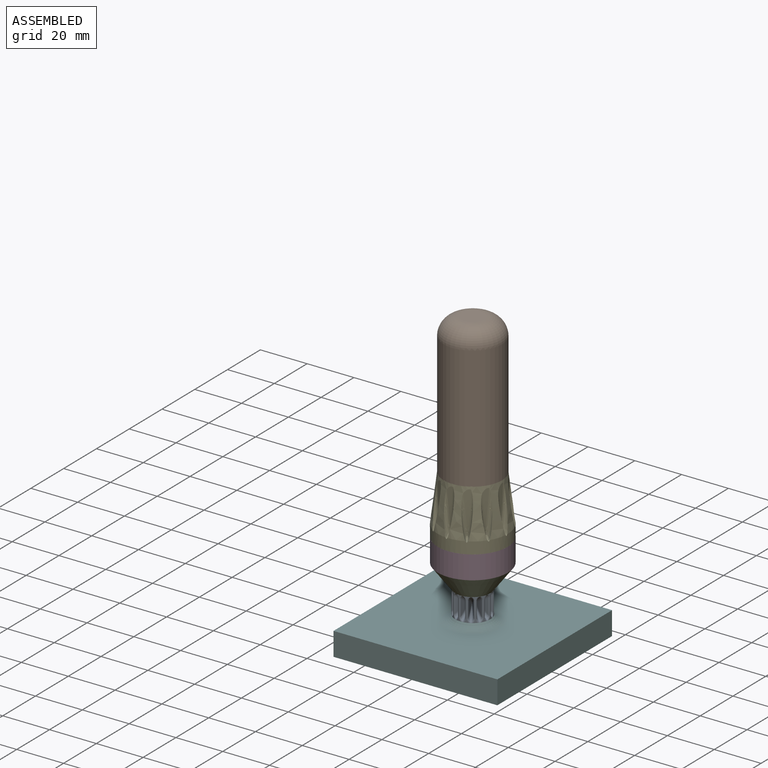
[diagram: assembled view]
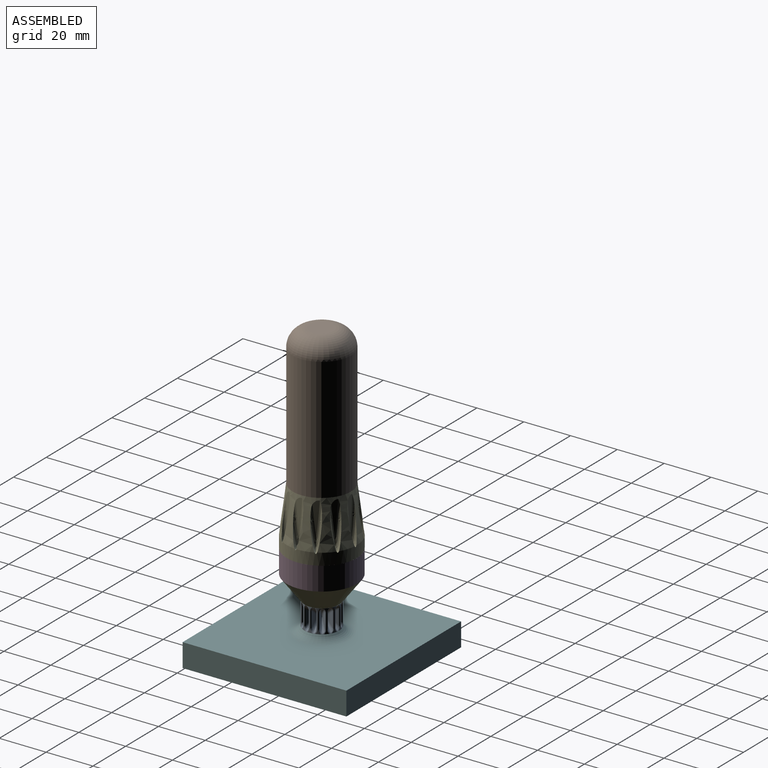
[diagram: assembled view, second angle]
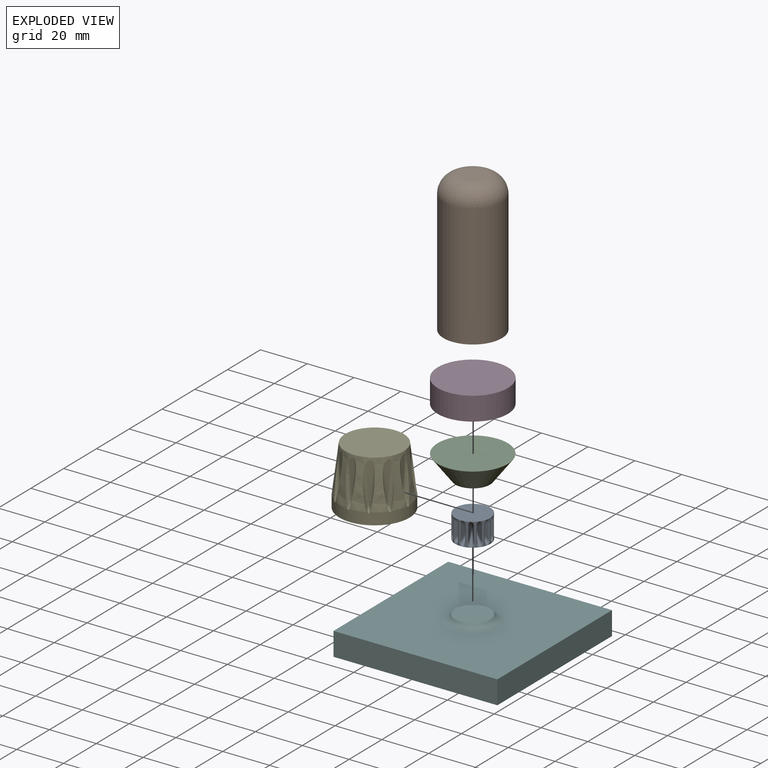
[diagram: exploded view]
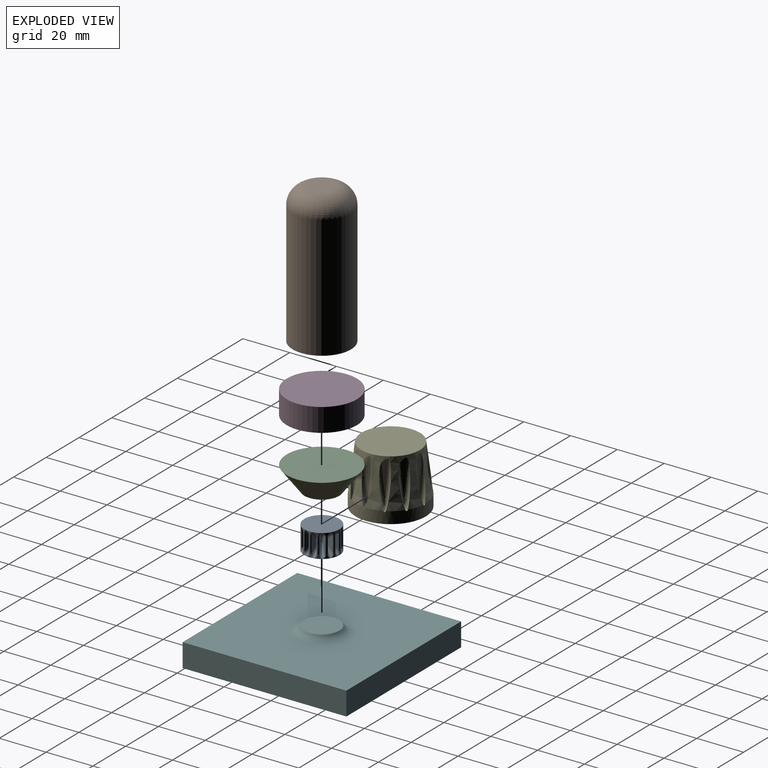
[diagram: exploded view, second angle]
ASSEMBLY  parts=6 mates=4
PART A: 167 faces, bbox 16.3x16.4x10.5 mm
  f0: cylinder r=7.5mm len=10mm, axis (0,0,-1), area 5mm2, adj f15,f16,f79,f81,f82,f95,f96,f98
  f1: cylinder r=7.5mm len=10mm, axis (0,0,-1), area 5mm2, adj f15,f16,f77,f78,f80,f85,f87,f88
  f2: cylinder r=7.5mm len=10mm, axis (0,0,-1), area 5mm2, adj f15,f16,f91,f93,f94,f143,f144,f146
  f3: cylinder r=7.5mm len=10mm, axis (0,0,-1), area 5mm2, adj f15,f16,f89,f90,f92,f97,f99,f100
  f4: cylinder r=7.5mm len=10mm, axis (0,0,-1), area 5mm2, adj f15,f16,f103,f105,f106,f119,f120,f122
  f5: cylinder r=7.5mm len=10mm, axis (0,0,-1), area 5mm2, adj f15,f16,f101,f102,f104,f109,f111,f112
  f6: cylinder r=7.5mm len=10mm, axis (0,0,-1), area 5mm2, adj f15,f16,f83,f84,f86,f115,f117,f118
  f7: cylinder r=7.5mm len=10mm, axis (0,0,-1), area 5mm2, adj f15,f16,f113,f114,f116,f121,f123,f124
  f8: cylinder r=7.5mm len=10mm, axis (0,0,-1), area 5mm2, adj f15,f16,f127,f129,f130,f131,f132,f134
  f9: cylinder r=7.5mm len=10mm, axis (0,0,-1), area 5mm2, adj f15,f16,f133,f135,f136,f161,f162,f164
  f10: cylinder r=7.5mm len=10mm, axis (0,0,-1), area 5mm2, adj f15,f16,f139,f141,f142,f155,f156,f158
  f11: cylinder r=7.5mm len=10mm, axis (0,0,-1), area 5mm2, adj f15,f16,f137,f138,f140,f145,f147,f148
  f12: cylinder r=7.5mm len=10mm, axis (0,0,-1), area 5mm2, adj f15,f16,f125,f126,f128,f151,f153,f154
  f13: cylinder r=7.5mm len=10mm, axis (0,0,-1), area 5mm2, adj f15,f16,f149,f150,f152,f157,f159,f160
  f14: cylinder r=7.5mm len=10mm, axis (0,0,-1), area 5mm2, adj f15,f16,f107,f108,f110,f163,f165,f166
  f15: plane 15.06x15.04mm, normal (0,0,1), area 176.5mm2, adj f0,f1,f2,f3,f4,f5,f6,f7
  f16: plane 15.06x15.04mm, normal (0,0,-1), area 176.5mm2, adj f0,f1,f2,f3,f4,f5,f6,f7
  f17: plane 6.39x2.87mm, normal (0.88,-0.47,0), area 12.4mm2, adj f19,f165
  f18: plane 6.39x3.21mm, normal (-0.99,0.14,0), area 12.4mm2, adj f20,f162
  f19: bspline ~10.02x4.81mm, area 18.8mm2, adj f17,f20,f163,f166
  f20: bspline ~10.02x5.72mm, area 18.8mm2, adj f18,f19,f161,f164
  f21: plane 6.39x3.01mm, normal (0.37,0.93,0), area 12.4mm2, adj f23,f159
  f22: plane 6.39x3.24mm, normal (-0.03,-1,0), area 12.4mm2, adj f24,f156
  f23: bspline ~10.02x5.05mm, area 18.8mm2, adj f21,f24,f157,f160
  f24: bspline ~10.02x5.66mm, area 18.8mm2, adj f22,f23,f155,f158
  f25: plane 6.39x2.34mm, normal (0.72,0.69,0), area 12.4mm2, adj f27,f153
  f26: plane 6.39x2.92mm, normal (-0.44,-0.9,0), area 12.4mm2, adj f28,f150
  f27: bspline ~10.02x4.77mm, area 18.8mm2, adj f25,f28,f151,f154
  f28: bspline ~10.02x5.51mm, area 18.8mm2, adj f26,f27,f149,f152
  f29: plane 6.39x2.92mm, normal (-0.44,0.9,0), area 12.4mm2, adj f31,f147
  f30: plane 6.39x2.34mm, normal (0.72,-0.69,0), area 12.4mm2, adj f32,f144
  f31: bspline ~10.02x5.51mm, area 18.8mm2, adj f29,f32,f145,f148
  f32: bspline ~10.02x4.77mm, area 18.8mm2, adj f30,f31,f143,f146
  f33: plane 6.39x3.24mm, normal (-0.03,1,0), area 12.4mm2, adj f35,f141
  f34: plane 6.39x3.01mm, normal (0.37,-0.93,0), area 12.4mm2, adj f36,f138
  f35: bspline ~10.02x5.66mm, area 18.8mm2, adj f33,f36,f139,f142
  f36: bspline ~10.02x5.05mm, area 18.8mm2, adj f34,f35,f137,f140
  f37: plane 6.39x3.24mm, normal (1,-0.07,0), area 12.4mm2, adj f39,f135
  f38: plane 6.39x3.12mm, normal (-0.96,-0.28,0), area 12.4mm2, adj f40,f132
  f39: bspline ~10.02x5.54mm, area 18.8mm2, adj f37,f40,f133,f136
  f40: bspline ~10.02x5.23mm, area 18.8mm2, adj f38,f39,f131,f134
  f41: plane 6.39x3.05mm, normal (0.94,0.34,0), area 12.4mm2, adj f43,f129
  f42: plane 6.39x2.49mm, normal (-0.77,-0.64,0), area 12.4mm2, adj f44,f126
  f43: bspline ~10.02x5.64mm, area 18.8mm2, adj f41,f44,f127,f130
  f44: bspline ~10.02x4.41mm, area 18.8mm2, adj f42,f43,f125,f128
  f45: plane 6.39x3.2mm, normal (-0.17,-0.98,0), area 12.4mm2, adj f47,f123
  f46: plane 6.39x3.2mm, normal (-0.17,0.98,0), area 12.4mm2, adj f48,f120
  f47: bspline ~10.02x5.36mm, area 18.8mm2, adj f45,f48,f121,f124
  f48: bspline ~10.02x5.36mm, area 18.8mm2, adj f46,f47,f119,f122
  f49: plane 6.39x2.69mm, normal (-0.56,-0.83,0), area 12.4mm2, adj f51,f117
  f50: plane 6.39x3.15mm, normal (0.24,0.97,0), area 12.4mm2, adj f52,f114
  f51: bspline ~10.02x4.58mm, area 18.8mm2, adj f49,f52,f115,f118
  f52: bspline ~10.02x5.71mm, area 18.8mm2, adj f50,f51,f113,f116
  f53: plane 6.39x2.56mm, normal (0.62,-0.79,0), area 12.4mm2, adj f55,f111
  f54: plane 6.39x2.75mm, normal (-0.85,0.53,0), area 12.4mm2, adj f56,f108
  f55: bspline ~10.02x5.07mm, area 18.8mm2, adj f53,f56,f109,f112
  f56: bspline ~10.02x5.32mm, area 18.8mm2, adj f54,f55,f107,f110
  f57: plane 6.39x3.15mm, normal (0.24,-0.97,0), area 12.4mm2, adj f59,f105
  f58: plane 6.39x2.69mm, normal (-0.56,0.83,0), area 12.4mm2, adj f60,f102
  f59: bspline ~10.02x5.71mm, area 18.8mm2, adj f57,f60,f103,f106
  f60: bspline ~10.02x4.58mm, area 18.8mm2, adj f58,f59,f101,f104
  f61: plane 6.39x3.12mm, normal (-0.96,0.28,0), area 12.4mm2, adj f63,f99
  f62: plane 6.39x3.24mm, normal (1,0.07,0), area 12.4mm2, adj f64,f96
  f63: bspline ~10.02x5.23mm, area 18.8mm2, adj f61,f64,f97,f100
  f64: bspline ~10.02x5.54mm, area 18.8mm2, adj f62,f63,f95,f98
  f65: plane 6.39x2.49mm, normal (-0.77,0.64,0), area 12.4mm2, adj f67,f93
  f66: plane 6.39x3.05mm, normal (0.94,-0.34,0), area 12.4mm2, adj f68,f90
  f67: bspline ~10.02x4.41mm, area 18.8mm2, adj f65,f68,f91,f94
  f68: bspline ~10.02x5.64mm, area 18.8mm2, adj f66,f67,f89,f92
  f69: plane 6.39x2.75mm, normal (-0.85,-0.53,0), area 12.4mm2, adj f71,f87
  f70: plane 6.39x2.56mm, normal (0.62,0.79,0), area 12.4mm2, adj f72,f84
  f71: bspline ~10.02x5.32mm, area 18.8mm2, adj f69,f72,f85,f88
  f72: bspline ~10.02x5.07mm, area 18.8mm2, adj f70,f71,f83,f86
  f73: plane 6.39x3.21mm, normal (-0.99,-0.14,0), area 12.4mm2, adj f75,f81
  f74: plane 6.39x2.87mm, normal (0.88,0.47,0), area 12.4mm2, adj f76,f78
  f75: bspline ~10.02x5.72mm, area 18.8mm2, adj f73,f76,f79,f82
  f76: bspline ~10.02x4.81mm, area 18.8mm2, adj f74,f75,f77,f80
  f77: bspline ~2.41x1.6mm, area 1.4mm2, adj f1,f15,f76,f78,f79
  f78: cylinder r=0.5mm len=6.39mm, axis (0,0,-1), area 5.1mm2, adj f1,f74,f77,f80
  f79: bspline ~2.41x1.62mm, area 1.4mm2, adj f0,f15,f75,f77,f81
  f80: bspline ~2.41x1.6mm, area 1.4mm2, adj f1,f16,f76,f78,f82
  f81: cylinder r=0.5mm len=6.39mm, axis (0,0,-1), area 5.1mm2, adj f0,f73,f79,f82
  f82: bspline ~2.41x1.62mm, area 1.4mm2, adj f0,f16,f75,f80,f81
  f83: bspline ~2.41x1.28mm, area 1.4mm2, adj f6,f15,f72,f84,f85
  f84: cylinder r=0.5mm len=6.39mm, axis (0,0,-1), area 5.1mm2, adj f6,f70,f83,f86
  f85: bspline ~2.41x1.33mm, area 1.4mm2, adj f1,f15,f71,f83,f87
  f86: bspline ~2.41x1.28mm, area 1.4mm2, adj f6,f16,f72,f84,f88
  f87: cylinder r=0.5mm len=6.39mm, axis (0,0,-1), area 5.1mm2, adj f1,f69,f85,f88
  f88: bspline ~2.41x1.33mm, area 1.4mm2, adj f1,f16,f71,f86,f87
  f89: bspline ~2.41x1.51mm, area 1.4mm2, adj f3,f15,f68,f90,f91
  f90: cylinder r=0.5mm len=6.39mm, axis (0,0,-1), area 5.1mm2, adj f3,f66,f89,f92
  f91: bspline ~2.41x1.47mm, area 1.4mm2, adj f2,f15,f67,f89,f93
  f92: bspline ~2.41x1.51mm, area 1.4mm2, adj f3,f16,f68,f90,f94
  f93: cylinder r=0.5mm len=6.39mm, axis (0,0,-1), area 5.1mm2, adj f2,f65,f91,f94
  f94: bspline ~2.41x1.47mm, area 1.4mm2, adj f2,f16,f67,f92,f93
  f95: bspline ~2.41x1.66mm, area 1.4mm2, adj f0,f15,f64,f96,f97
  f96: cylinder r=0.5mm len=6.39mm, axis (0,0,-1), area 5.1mm2, adj f0,f62,f95,f98
  f97: bspline ~2.41x1.65mm, area 1.4mm2, adj f3,f15,f63,f95,f99
  f98: bspline ~2.41x1.66mm, area 1.4mm2, adj f0,f16,f64,f96,f100
  f99: cylinder r=0.5mm len=6.39mm, axis (0,0,-1), area 5.1mm2, adj f3,f61,f97,f100
  f100: bspline ~2.41x1.65mm, area 1.4mm2, adj f3,f16,f63,f98,f99
  f101: bspline ~2.41x1.54mm, area 1.4mm2, adj f5,f15,f60,f102,f103
  f102: cylinder r=0.5mm len=6.39mm, axis (0,0,-1), area 5.1mm2, adj f5,f58,f101,f104
  f103: bspline ~2.41x1.57mm, area 1.4mm2, adj f4,f15,f59,f101,f105
  f104: bspline ~2.41x1.54mm, area 1.4mm2, adj f5,f16,f60,f102,f106
  f105: cylinder r=0.5mm len=6.39mm, axis (0,0,-1), area 5.1mm2, adj f4,f57,f103,f106
  f106: bspline ~2.41x1.57mm, area 1.4mm2, adj f4,f16,f59,f104,f105
  f107: bspline ~2.41x1.33mm, area 1.4mm2, adj f14,f15,f56,f108,f109
  f108: cylinder r=0.5mm len=6.39mm, axis (0,0,-1), area 5.1mm2, adj f14,f54,f107,f110
  f109: bspline ~2.41x1.28mm, area 1.4mm2, adj f5,f15,f55,f107,f111
  f110: bspline ~2.41x1.33mm, area 1.4mm2, adj f14,f16,f56,f108,f112
  f111: cylinder r=0.5mm len=6.39mm, axis (0,0,-1), area 5.1mm2, adj f5,f53,f109,f112
  f112: bspline ~2.41x1.28mm, area 1.4mm2, adj f5,f16,f55,f110,f111
  f113: bspline ~2.41x1.57mm, area 1.4mm2, adj f7,f15,f52,f114,f115
  f114: cylinder r=0.5mm len=6.39mm, axis (0,0,-1), area 5.1mm2, adj f7,f50,f113,f116
  f115: bspline ~2.41x1.54mm, area 1.4mm2, adj f6,f15,f51,f113,f117
  f116: bspline ~2.41x1.57mm, area 1.4mm2, adj f7,f16,f52,f114,f118
  f117: cylinder r=0.5mm len=6.39mm, axis (0,0,-1), area 5.1mm2, adj f6,f49,f115,f118
  f118: bspline ~2.41x1.54mm, area 1.4mm2, adj f6,f16,f51,f116,f117
  f119: bspline ~2.41x1.66mm, area 1.4mm2, adj f4,f15,f48,f120,f121
  f120: cylinder r=0.5mm len=6.39mm, axis (0,0,-1), area 5.1mm2, adj f4,f46,f119,f122
  f121: bspline ~2.41x1.66mm, area 1.4mm2, adj f7,f15,f47,f119,f123
  f122: bspline ~2.41x1.66mm, area 1.4mm2, adj f4,f16,f48,f120,f124
  f123: cylinder r=0.5mm len=6.39mm, axis (0,0,-1), area 5.1mm2, adj f7,f45,f121,f124
  f124: bspline ~2.41x1.66mm, area 1.4mm2, adj f7,f16,f47,f122,f123
  f125: bspline ~2.41x1.47mm, area 1.4mm2, adj f12,f15,f44,f126,f127
  f126: cylinder r=0.5mm len=6.39mm, axis (0,0,-1), area 5.1mm2, adj f12,f42,f125,f128
  f127: bspline ~2.41x1.51mm, area 1.4mm2, adj f8,f15,f43,f125,f129
  f128: bspline ~2.41x1.47mm, area 1.4mm2, adj f12,f16,f44,f126,f130
  f129: cylinder r=0.5mm len=6.39mm, axis (0,0,-1), area 5.1mm2, adj f8,f41,f127,f130
  f130: bspline ~2.41x1.51mm, area 1.4mm2, adj f8,f16,f43,f128,f129
  f131: bspline ~2.41x1.65mm, area 1.4mm2, adj f8,f15,f40,f132,f133
  f132: cylinder r=0.5mm len=6.39mm, axis (0,0,-1), area 5.1mm2, adj f8,f38,f131,f134
  f133: bspline ~2.41x1.66mm, area 1.4mm2, adj f9,f15,f39,f131,f135
  f134: bspline ~2.41x1.65mm, area 1.4mm2, adj f8,f16,f40,f132,f136
  f135: cylinder r=0.5mm len=6.39mm, axis (0,0,-1), area 5.1mm2, adj f9,f37,f133,f136
  f136: bspline ~2.41x1.66mm, area 1.4mm2, adj f9,f16,f39,f134,f135
  f137: bspline ~2.41x1.63mm, area 1.4mm2, adj f11,f15,f36,f138,f139
  f138: cylinder r=0.5mm len=6.39mm, axis (0,0,-1), area 5.1mm2, adj f11,f34,f137,f140
  f139: bspline ~2.41x1.65mm, area 1.4mm2, adj f10,f15,f35,f137,f141
  f140: bspline ~2.41x1.63mm, area 1.4mm2, adj f11,f16,f36,f138,f142
  f141: cylinder r=0.5mm len=6.39mm, axis (0,0,-1), area 5.1mm2, adj f10,f33,f139,f142
  f142: bspline ~2.41x1.65mm, area 1.4mm2, adj f10,f16,f35,f140,f141
  f143: bspline ~2.41x1.38mm, area 1.4mm2, adj f2,f15,f32,f144,f145
  f144: cylinder r=0.5mm len=6.39mm, axis (0,0,-1), area 5.1mm2, adj f2,f30,f143,f146
  f145: bspline ~2.41x1.43mm, area 1.4mm2, adj f11,f15,f31,f143,f147
  f146: bspline ~2.41x1.38mm, area 1.4mm2, adj f2,f16,f32,f144,f148
  f147: cylinder r=0.5mm len=6.39mm, axis (0,0,-1), area 5.1mm2, adj f11,f29,f145,f148
  f148: bspline ~2.41x1.43mm, area 1.4mm2, adj f11,f16,f31,f146,f147
  f149: bspline ~2.41x1.43mm, area 1.4mm2, adj f13,f15,f28,f150,f151
  f150: cylinder r=0.5mm len=6.39mm, axis (0,0,-1), area 5.1mm2, adj f13,f26,f149,f152
  f151: bspline ~2.41x1.38mm, area 1.4mm2, adj f12,f15,f27,f149,f153
  f152: bspline ~2.41x1.43mm, area 1.4mm2, adj f13,f16,f28,f150,f154
  f153: cylinder r=0.5mm len=6.39mm, axis (0,0,-1), area 5.1mm2, adj f12,f25,f151,f154
  f154: bspline ~2.41x1.38mm, area 1.4mm2, adj f12,f16,f27,f152,f153
  f155: bspline ~2.41x1.65mm, area 1.4mm2, adj f10,f15,f24,f156,f157
  f156: cylinder r=0.5mm len=6.39mm, axis (0,0,-1), area 5.1mm2, adj f10,f22,f155,f158
  f157: bspline ~2.41x1.63mm, area 1.4mm2, adj f13,f15,f23,f155,f159
  f158: bspline ~2.41x1.65mm, area 1.4mm2, adj f10,f16,f24,f156,f160
  f159: cylinder r=0.5mm len=6.39mm, axis (0,0,-1), area 5.1mm2, adj f13,f21,f157,f160
  f160: bspline ~2.41x1.63mm, area 1.4mm2, adj f13,f16,f23,f158,f159
  f161: bspline ~2.41x1.62mm, area 1.4mm2, adj f9,f15,f20,f162,f163
  f162: cylinder r=0.5mm len=6.39mm, axis (0,0,-1), area 5.1mm2, adj f9,f18,f161,f164
  f163: bspline ~2.41x1.6mm, area 1.4mm2, adj f14,f15,f19,f161,f165
  f164: bspline ~2.41x1.62mm, area 1.4mm2, adj f9,f16,f20,f162,f166
  f165: cylinder r=0.5mm len=6.39mm, axis (0,0,-1), area 5.1mm2, adj f14,f17,f163,f166
  f166: bspline ~2.41x1.6mm, area 1.4mm2, adj f14,f16,f19,f164,f165
PART B: 4 faces, bbox 25x25x60 mm
  f0: cylinder r=12.5mm len=52.5mm, axis (0,0,-1), area 4123.3mm2, adj f2,f3
  f1: plane 10x10mm, normal (0,0,1), area 78.5mm2, adj f3
  f2: plane 25x25mm, normal (0,0,-1), area 490.9mm2, adj f0
  f3: torus R=5mm, axis (0,0,1), area 723.5mm2, adj f0,f1
PART C: 3 faces, bbox 30x30x10 mm
  f0: cone r=7.46mm half-angle=37deg, axis (0,0,1), area 883.6mm2, adj f1,f2
  f1: plane 30x30mm, normal (0,0,1), area 706.7mm2, adj f0
  f2: plane 14.93x14.93mm, normal (0,0,-1), area 175mm2, adj f0
PART D: 3 faces, bbox 30x30x10 mm
  f0: cylinder r=15mm len=30mm, axis (0,0,-1), area 942.5mm2, adj f1,f2
  f1: plane 30x30mm, normal (0,0,1), area 706.9mm2, adj f0
  f2: plane 30x30mm, normal (0,0,-1), area 706.9mm2, adj f0
PART E: 64 faces, bbox 30.4x30.4x25.4 mm
  f0: cylinder r=15mm len=30mm, axis (0,0,-1), area 471.2mm2, adj f1,f3,f4,f9,f14,f19,f24,f29
  f1: cone r=12.5mm half-angle=7.1deg, axis (0,0,-1), area 1002mm2, adj f0,f2,f4,f5,f6,f8,f9,f10
  f2: plane 25x25mm, normal (0,0,1), area 490.9mm2, adj f1
  f3: plane 30x30mm, normal (0,0,-1), area 706.9mm2, adj f0
  f4: extruded ~7.29x3.33mm, area 6.5mm2, adj f0,f1,f6,f7,f8
  f5: plane 14.16x2.29mm, normal (-0.5,0.87,0), area 20.5mm2, adj f1,f6,f8
  f6: bspline ~19.07x3.41mm, area 21mm2, adj f1,f4,f5,f7
  f7: bspline ~5.36x1.6mm, area 3.4mm2, adj f4,f6,f8
  f8: bspline ~19.69x3.96mm, area 24.4mm2, adj f1,f4,f5,f7
  f9: extruded ~7.29x3.33mm, area 6.5mm2, adj f0,f1,f11,f12,f13
  f10: plane 14.16x2.29mm, normal (0.5,-0.87,0), area 20.5mm2, adj f1,f11,f13
  f11: bspline ~19.07x3.41mm, area 21mm2, adj f1,f9,f10,f12
  f12: bspline ~5.36x1.6mm, area 3.4mm2, adj f9,f11,f13
  f13: bspline ~19.69x3.96mm, area 24.4mm2, adj f1,f9,f10,f12
  f14: extruded ~7.29x3.33mm, area 6.5mm2, adj f0,f1,f16,f17,f18
  f15: plane 14.16x2.29mm, normal (0.87,-0.5,0), area 20.5mm2, adj f1,f16,f18
  f16: bspline ~18.85x4.1mm, area 21mm2, adj f1,f14,f15,f17
  f17: bspline ~5.36x1.62mm, area 4mm2, adj f14,f16,f18
  f18: bspline ~19.69x3.21mm, area 24.4mm2, adj f1,f14,f15,f17
  f19: extruded ~7.29x3.34mm, area 6.5mm2, adj f0,f1,f21,f22,f23
  f20: plane 14.16x2.65mm, normal (0,-1,0), area 20.5mm2, adj f1,f21,f23
  f21: bspline ~19.07x3.94mm, area 21mm2, adj f1,f19,f20,f22
  f22: bspline ~5.36x1.5mm, area 3.4mm2, adj f19,f21,f23
  f23: bspline ~19.69x3.7mm, area 24.4mm2, adj f1,f19,f20,f22
  f24: extruded ~7.29x3.34mm, area 6.5mm2, adj f0,f1,f26,f27,f28
  f25: plane 14.16x2.65mm, normal (0,1,0), area 20.5mm2, adj f1,f26,f28
  f26: bspline ~19.07x3.94mm, area 21mm2, adj f1,f24,f25,f27
  f27: bspline ~5.36x1.5mm, area 3.4mm2, adj f24,f26,f28
  f28: bspline ~19.69x3.7mm, area 24.4mm2, adj f1,f24,f25,f27
  f29: extruded ~7.29x3.33mm, area 6.5mm2, adj f0,f1,f31,f32,f33
  f30: plane 14.16x2.29mm, normal (0.87,0.5,0), area 20.5mm2, adj f1,f31,f33
  f31: bspline ~19.07x3.41mm, area 21mm2, adj f1,f29,f30,f32
  f32: bspline ~5.36x1.6mm, area 3.4mm2, adj f29,f31,f33
  f33: bspline ~19.69x3.96mm, area 24.4mm2, adj f1,f29,f30,f32
  f34: extruded ~7.29x3.34mm, area 6.5mm2, adj f0,f1,f36,f37,f38
  f35: plane 14.16x2.65mm, normal (1,0,0), area 20.5mm2, adj f1,f36,f38
  f36: bspline ~19.07x3.94mm, area 21mm2, adj f1,f34,f35,f37
  f37: bspline ~5.36x1.5mm, area 3.4mm2, adj f34,f36,f38
  f38: bspline ~19.69x3.7mm, area 24.4mm2, adj f1,f34,f35,f37
  f39: extruded ~7.29x3.33mm, area 6.5mm2, adj f0,f1,f41,f42,f43
  f40: plane 14.16x2.29mm, normal (0.5,0.87,0), area 20.5mm2, adj f1,f41,f43
  f41: bspline ~18.85x4.1mm, area 21mm2, adj f1,f39,f40,f42
  f42: bspline ~5.36x1.62mm, area 4mm2, adj f39,f41,f43
  f43: bspline ~19.69x3.21mm, area 24.4mm2, adj f1,f39,f40,f42
  f44: extruded ~7.29x3.33mm, area 6.5mm2, adj f0,f1,f46,f47,f48
  f45: plane 14.16x2.29mm, normal (-0.87,0.5,0), area 20.5mm2, adj f1,f46,f48
  f46: bspline ~18.85x4.1mm, area 21mm2, adj f1,f44,f45,f47
  f47: bspline ~5.36x1.62mm, area 4mm2, adj f44,f46,f48
  f48: bspline ~19.69x3.21mm, area 24.4mm2, adj f1,f44,f45,f47
  f49: extruded ~7.29x3.34mm, area 6.5mm2, adj f0,f1,f51,f52,f53
  f50: plane 14.6x3.09mm, normal (-1,0,0), area 20.5mm2, adj f1,f51,f53
  f51: bspline ~19.07x3.94mm, area 21mm2, adj f1,f49,f50,f52
  f52: bspline ~5.36x1.5mm, area 3.4mm2, adj f49,f51,f53
  f53: bspline ~19.69x3.7mm, area 24.4mm2, adj f1,f49,f50,f52
  f54: extruded ~7.29x3.33mm, area 6.5mm2, adj f0,f1,f56,f57,f58
  f55: plane 14.16x2.29mm, normal (-0.5,-0.87,0), area 20.5mm2, adj f1,f56,f58
  f56: bspline ~18.85x4.1mm, area 21mm2, adj f1,f54,f55,f57
  f57: bspline ~5.36x1.62mm, area 4mm2, adj f54,f56,f58
  f58: bspline ~19.69x3.21mm, area 24.4mm2, adj f1,f54,f55,f57
  f59: extruded ~7.29x3.33mm, area 6.5mm2, adj f0,f1,f61,f62,f63
  f60: plane 14.16x2.29mm, normal (-0.87,-0.5,0), area 20.5mm2, adj f1,f61,f63
  f61: bspline ~19.07x3.41mm, area 21mm2, adj f1,f59,f60,f62
  f62: bspline ~5.36x1.6mm, area 3.4mm2, adj f59,f61,f63
  f63: bspline ~19.69x3.96mm, area 24.4mm2, adj f1,f59,f60,f62
PART F: 8 faces, bbox 70x70x15 mm
  f0: plane 15x15mm, normal (0,0,1), area 176.7mm2, adj f7
  f1: plane 70x10mm, normal (1,0,0), area 700mm2, adj f2,f4,f5,f6
  f2: plane 70x10mm, normal (0,-1,0), area 700mm2, adj f1,f3,f5,f6
  f3: plane 70x10mm, normal (-1,0,0), area 700mm2, adj f2,f4,f5,f6
  f4: plane 70x10mm, normal (0,1,0), area 700mm2, adj f1,f3,f5,f6
  f5: plane 70x70mm, normal (0,0,-1), area 4900mm2, adj f1,f2,f3,f4
  f6: plane 70x70mm, normal (0,0,1), area 4460.3mm2, adj f1,f2,f3,f4,f7
  f7: torus R=11.83mm, axis (0,0,-1), area 310.7mm2, adj f0,f6
PLACE A t=(-9.09,-2.82,-66.36)mm
PLACE B t=(24.81,-2.82,-66.36)mm
PLACE C t=(-9.09,-2.82,-66.36)mm
PLACE D t=(-9.09,-2.82,-66.36)mm
PLACE E t=(24.81,-2.82,-66.36)mm
PLACE F t=(-9.09,-2.82,-66.36)mm
MATE planar D.f0 <-> C.f0  axis (0,0,-1) through (24.81,-2.82,-46.36)mm
MATE planar B.f0 <-> E.f0  axis (0,0,-1) through (24.81,-2.82,-11.36)mm
MATE cylindrical F.f7 <-> A.f0  axis (0,0,1) through (24.81,-2.82,-66.36)mm
MATE planar D.f0 <-> C.f0  axis (0,0,-1) through (24.81,-2.82,-46.36)mm
